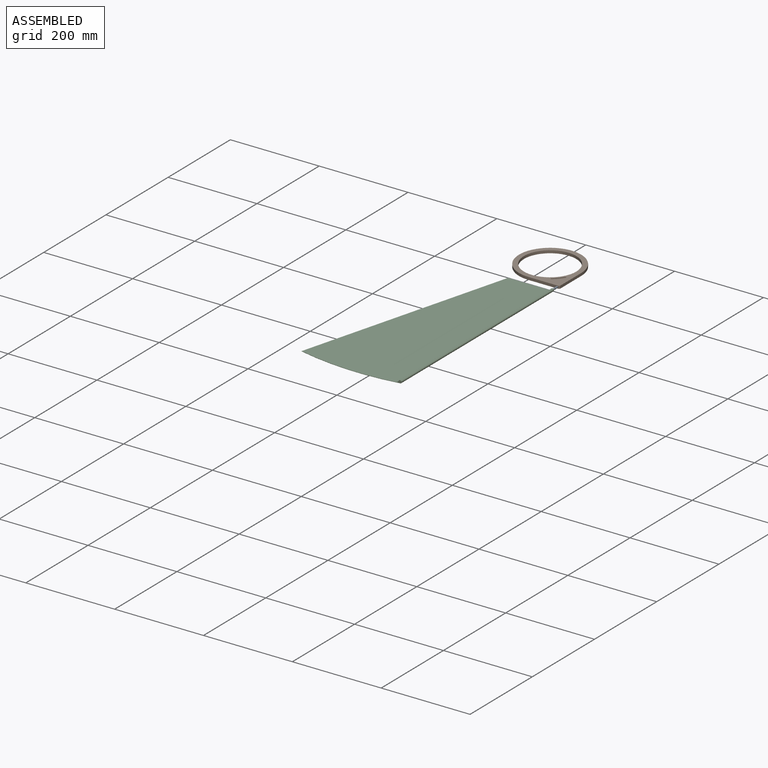
[diagram: assembled view]
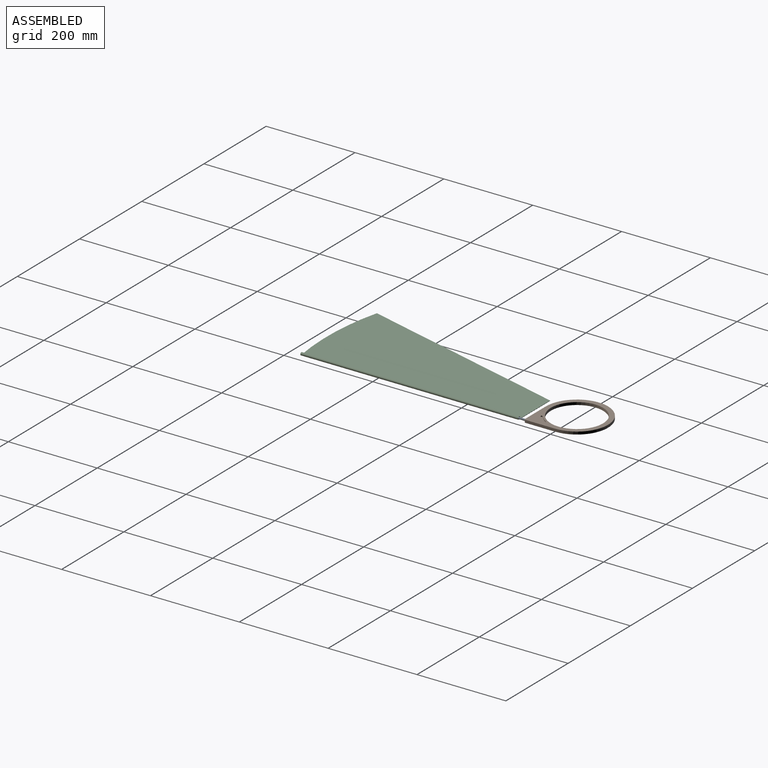
[diagram: assembled view, second angle]
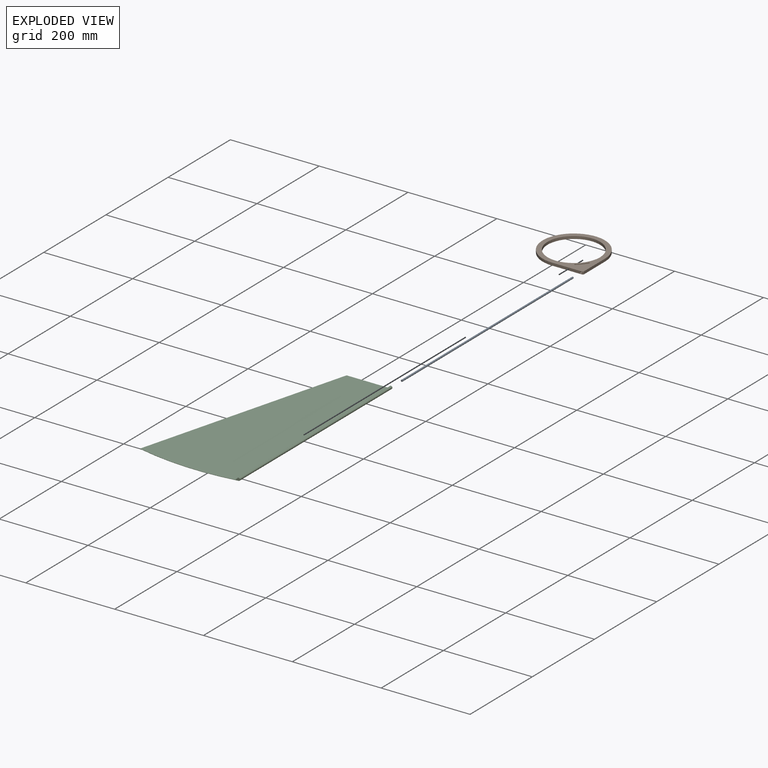
[diagram: exploded view]
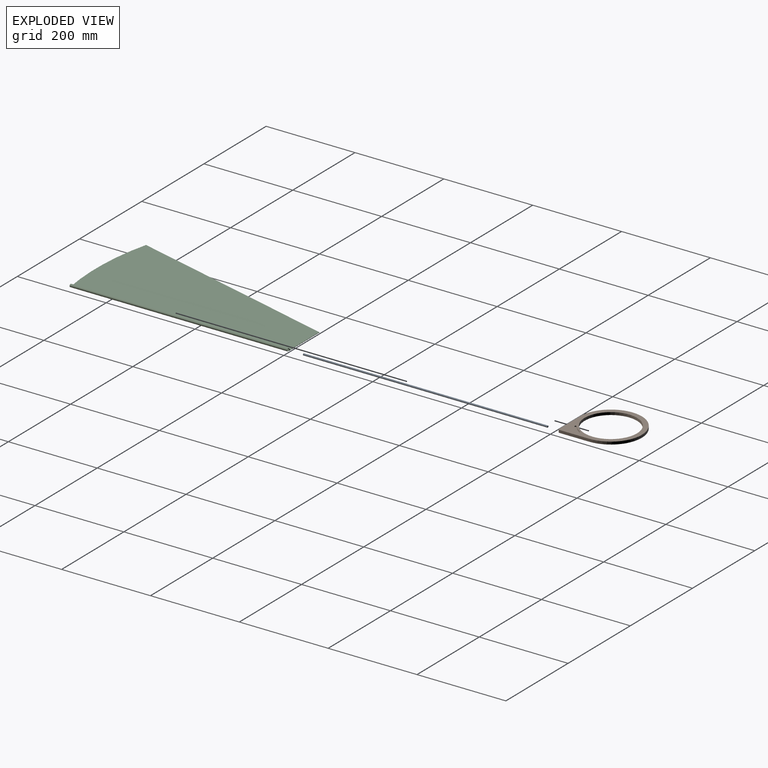
[diagram: exploded view, second angle]
ASSEMBLY  parts=3 mates=2
PART A: 3 faces, bbox 4x550x4 mm
  f0: cylinder r=2mm len=550mm, axis (0,1,0), area 6911.5mm2, adj f1,f2
  f1: plane 4x4mm, normal (0,-1,0), area 12.6mm2, adj f0
  f2: plane 4x4mm, normal (0,1,0), area 12.6mm2, adj f0
PART B: 16 faces, bbox 140x140x6 mm
  f0: plane 68x6mm, normal (1,0,0), area 408mm2, adj f1,f4,f5,f15
  f1: cylinder r=70mm len=140mm, axis (0,0,-1), area 1979.2mm2, adj f0,f3,f4,f5
  f2: cylinder r=59mm len=118mm, axis (0,0,-1), area 2224.2mm2, adj f4,f5
  f3: plane 68x6mm, normal (0,-1,0), area 395.4mm2, adj f1,f4,f5,f7,f15
  f4: plane 140x140mm, normal (0,0,1), area 5392.8mm2, adj f0,f1,f2,f3,f8,f9,f10,f11
  f5: plane 140x140mm, normal (0,0,-1), area 5495.5mm2, adj f0,f1,f2,f3,f14,f15
  f6: cone r=0mm half-angle=59deg, axis (0,-1,0), area 14.7mm2, adj f7
  f7: cylinder r=2mm len=50mm, axis (0,-1,0), area 628.3mm2, adj f3,f6
  f8: cylinder r=67mm len=19.65mm, axis (0,0,1), area 52.6mm2, adj f4,f9,f11,f12
  f9: cylinder r=2mm len=3.73mm, axis (0,0,1), area 12.6mm2, adj f4,f8,f10,f12
  f10: cylinder r=63mm len=18.48mm, axis (0,0,1), area 49.5mm2, adj f4,f9,f11,f12
  f11: cylinder r=2mm len=3.59mm, axis (0,0,1), area 12.6mm2, adj f4,f8,f10,f12
  f12: plane 23.07x20.72mm, normal (0,0,1), area 114.4mm2, adj f8,f9,f10,f11,f13
  f13: cone r=0mm half-angle=59deg, axis (0,0,-1), area 13.6mm2, adj f12,f14
  f14: cylinder r=1.95mm len=3.9mm, axis (0,0,-1), area 36.8mm2, adj f5,f13
  f15: plane 6x2mm, normal (0.71,-0.71,0), area 17mm2, adj f0,f3,f4,f5
PART C: 10 faces, bbox 497.1x231.8x6.4 mm
  f0: plane 497.09x228.65mm, normal (0,0,1), area 78389.7mm2, adj f1,f2,f3,f5,f6
  f1: plane 103.2x6.4mm, normal (-1,0,0), area 90.7mm2, adj f0,f2,f4,f6,f7,f8
  f2: plane 480.12x128.65mm, normal (-0.26,-0.97,0), area 397.6mm2, adj f0,f1,f3,f4
  f3: cylinder r=575mm len=228.65mm, axis (0,0,-1), area 184.3mm2, adj f0,f2,f4,f5
  f4: plane 497.09x228.65mm, normal (0,0,-1), area 81783.2mm2, adj f1,f2,f3,f7
  f5: plane 10.13x6.4mm, normal (1,0,0), area 39mm2, adj f0,f3,f6,f7
  f6: plane 490x4.66mm, normal (0,-0.71,0.71), area 3231.1mm2, adj f0,f1,f5,f7
  f7: cylinder r=3.2mm len=490mm, axis (-1,0,0), area 6157.5mm2, adj f1,f4,f5,f6
  f8: cylinder r=3mm len=485mm, axis (-1,0,0), area 9142mm2, adj f1,f9
  f9: plane 6x6mm, normal (-1,0,0), area 28.3mm2, adj f8
PLACE A t=(0,0,-4)mm
PLACE B t=(0,0,-4)mm
PLACE C rot(axis=(0,0,-1),90deg) t=(65,-330,-0.2)mm
MATE fastened A.f0 <-> B.f6  axis (0,1,0) through (65,-20,3)mm
MATE fastened A.f0 <-> C.f7  axis (0,-1,0) through (65,-570,3)mm
